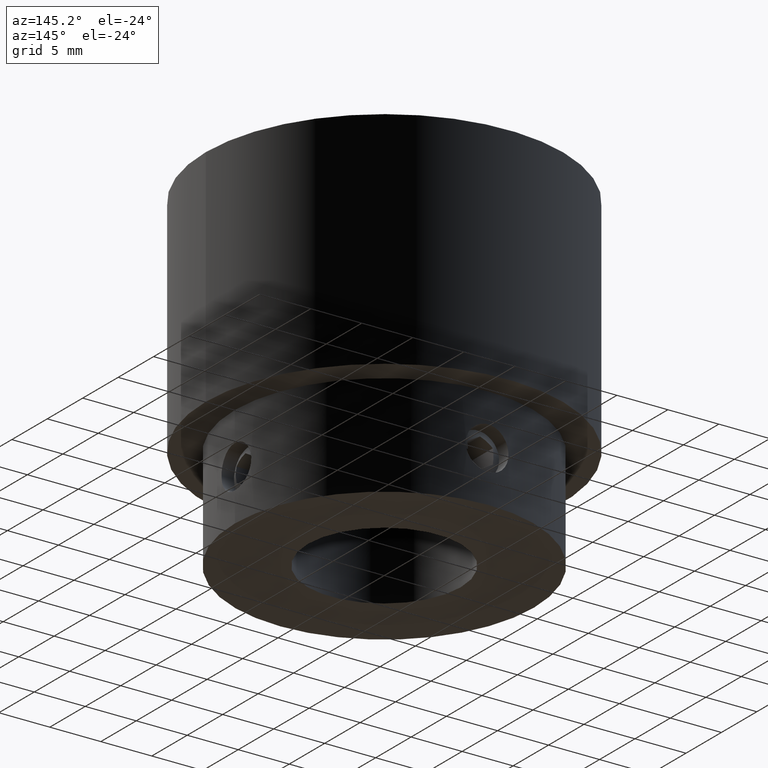
[diagram: clean part render]
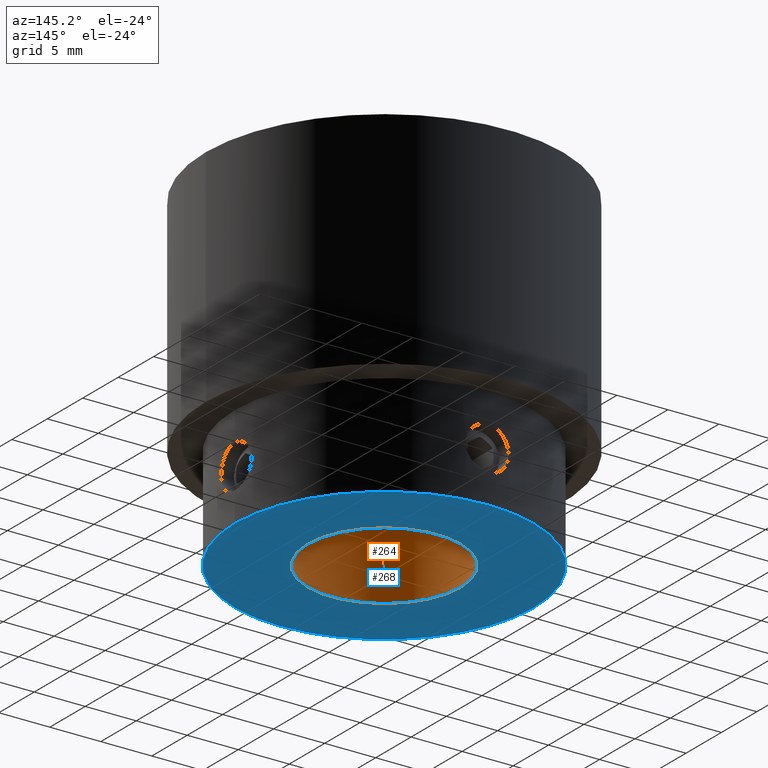
[diagram: same view with the hole feature highlighted: cylindrical wall and planar end face, labeled with their STEP entity ids]
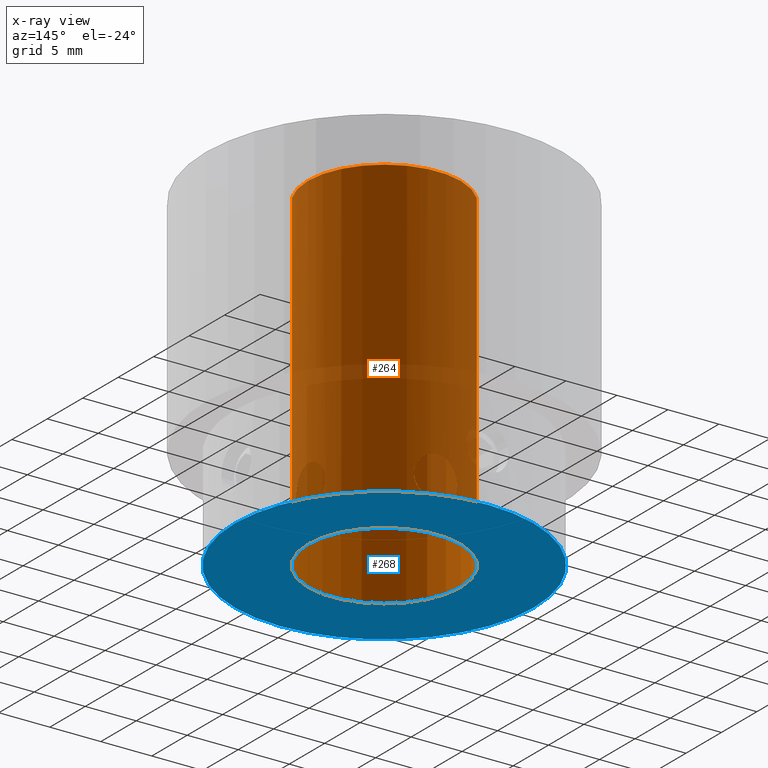
[diagram: x-ray of the same camera — body ghosted, the hole faces saturated]
A machine part, auxiliary view. The highlighted faces form one hole feature of diameter 15 mm: the cylindrical wall (entity #264, orange) and its adjacent planar end face (entity #268, blue) — they share a circular edge in the B-rep.
The next image is the same camera in x-ray (body ghosted, the hole faces saturated) — the bore reads through the body.
Wall:
#264 = ADVANCED_FACE( '', ( #309, #310, #311, #312 ), #313, .F. );
#309 = FACE_BOUND( '', #401, .T. );
#310 = FACE_OUTER_BOUND( '', #402, .T. );
#311 = FACE_OUTER_BOUND( '', #403, .T. );
#312 = FACE_BOUND( '', #404, .T. );
#313 = CYLINDRICAL_SURFACE( '', #405, 7.50000000000000 );
#401 = EDGE_LOOP( '', ( #495 ) );
#402 = EDGE_LOOP( '', ( #496 ) );
#403 = EDGE_LOOP( '', ( #497 ) );
#404 = EDGE_LOOP( '', ( #498 ) );
#405 = AXIS2_PLACEMENT_3D( '', #499, #500, #501 );
#495 = ORIENTED_EDGE( '', *, *, #708, .T. );
#496 = ORIENTED_EDGE( '', *, *, #709, .F. );
#497 = ORIENTED_EDGE( '', *, *, #710, .T. );
#498 = ORIENTED_EDGE( '', *, *, #711, .T. );
#499 = CARTESIAN_POINT( '', ( 0.000000000000000, 0.000000000000000, -32.0000000000000 ) );
#500 = DIRECTION( '', ( -0.000000000000000, 0.000000000000000, -1.00000000000000 ) );
#501 = DIRECTION( '', ( 1.00000000000000, 0.000000000000000, 0.000000000000000 ) );
#708 = EDGE_CURVE( '', #770, #770, #771, .T. );
#709 = EDGE_CURVE( '', #772, #772, #773, .T. );
#710 = EDGE_CURVE( '', #774, #774, #775, .T. );
#711 = EDGE_CURVE( '', #776, #776, #777, .T. );
#770 = VERTEX_POINT( '', #980 );
#771 = B_SPLINE_CURVE_WITH_KNOTS( '', 3, ( #981, #982, #983, #984, #985, #986, #987, #988, #989, #990, #991, #992, #993, #994, #995, #996, #997, #998, #999, #1000, #1001, #1002, #1003, #1004, #1005, #1006, #1007, #1008, #1009, #1010, #1011, #1012, #1013, #1014, #1015, #1016, #1017, #1018, #1019, #1020, #1021, #1022, #1023, #1024, #1025, #1026, #1027, #1028, #1029, #1030, #1031, #1032, #1033, #1034, #1035, #1036, #1037, #1038 ), .UNSPECIFIED., .T., .F., ( 2, 2, 2, 2, 2, 2, 2, 2, 2, 2, 2, 2, 2, 2, 2, 2, 2, 2, 2, 2, 2, 2, 2, 2, 2, 2, 2, 2, 2, 2, 2 ), ( -0.000412362784899686, 0.000000000000000, 0.000412362784899688, 0.000824725569799376, 0.00123708835469906, 0.00164945113959875, 0.00247417670939813, 0.00288653949429782, 0.00329890227919750, 0.00371126506409719, 0.00412362784899688, 0.00494835341879625, 0.00536071620369593, 0.00577307898859561, 0.00618544177349529, 0.00659780455839498, 0.00742253012819434, 0.00783489291309402, 0.00824725569799370, 0.00865961848289339, 0.00907198126779307, 0.00948434405269275, 0.00989670683759243, 0.0103090696224921, 0.0107214324073918, 0.0115461579771912, 0.0119585207620908, 0.0123708835469905, 0.0127832463318902, 0.0131956091167899, 0.0136079719016896 ), .UNSPECIFIED. );
#772 = VERTEX_POINT( '', #1039 );
#773 = CIRCLE( '', #1040, 7.50000000000000 );
#774 = VERTEX_POINT( '', #1041 );
#775 = CIRCLE( '', #1042, 7.50000000000000 );
#776 = VERTEX_POINT( '', #1043 );
#777 = B_SPLINE_CURVE_WITH_KNOTS( '', 3, ( #1044, #1045, #1046, #1047, #1048, #1049, #1050, #1051, #1052, #1053, #1054, #1055, #1056, #1057, #1058, #1059, #1060, #1061, #1062, #1063, #1064, #1065, #1066, #1067, #1068, #1069, #1070, #1071, #1072, #1073, #1074, #1075, #1076, #1077, #1078, #1079, #1080, #1081, #1082, #1083, #1084, #1085, #1086, #1087, #1088, #1089, #1090, #1091, #1092, #1093, #1094, #1095, #1096, #1097, #1098, #1099, #1100, #1101 ), .UNSPECIFIED., .T., .F., ( 2, 2, 2, 2, 2, 2, 2, 2, 2, 2, 2, 2, 2, 2, 2, 2, 2, 2, 2, 2, 2, 2, 2, 2, 2, 2, 2, 2, 2, 2, 2 ), ( -0.000412362784899685, 0.000000000000000, 0.000412362784899688, 0.000824725569799377, 0.00123708835469906, 0.00164945113959875, 0.00247417670939813, 0.00288653949429782, 0.00329890227919751, 0.00371126506409719, 0.00412362784899688, 0.00494835341879625, 0.00536071620369593, 0.00577307898859562, 0.00618544177349530, 0.00659780455839498, 0.00742253012819435, 0.00783489291309403, 0.00824725569799371, 0.00865961848289339, 0.00907198126779307, 0.00948434405269275, 0.00989670683759243, 0.0103090696224921, 0.0107214324073918, 0.0115461579771912, 0.0119585207620909, 0.0123708835469905, 0.0127832463318902, 0.0131956091167899, 0.0136079719016896 ), .UNSPECIFIED. );
#980 = CARTESIAN_POINT( '', ( 7.50000000000000, 0.000000000000000, -29.1000000000000 ) );
#981 = CARTESIAN_POINT( '', ( 7.50000000000000, -0.139484547544357, -29.1000000000000 ) );
#982 = CARTESIAN_POINT( '', ( 7.50000000000000, 0.139484547544357, -29.1000000000000 ) );
#983 = CARTESIAN_POINT( '', ( 7.49611484500254, 0.276503006300371, -29.0862421072495 ) );
#984 = CARTESIAN_POINT( '', ( 7.48132602034894, 0.545850400027695, -29.0324633781064 ) );
#985 = CARTESIAN_POINT( '', ( 7.47023736893898, 0.679611597025491, -28.9917452388751 ) );
#986 = CARTESIAN_POINT( '', ( 7.44276023855697, 0.933615714552528, -28.8860760103808 ) );
#987 = CARTESIAN_POINT( '', ( 7.42646851304949, 1.05397114383422, -28.8215154050814 ) );
#988 = CARTESIAN_POINT( '', ( 7.39056700189677, 1.28172116227570, -28.6691208479791 ) );
#989 = CARTESIAN_POINT( '', ( 7.37091564133840, 1.38897645120188, -28.5809181210956 ) );
#990 = CARTESIAN_POINT( '', ( 7.31254440122232, 1.67788744408973, -28.2918685983388 ) );
#991 = CARTESIAN_POINT( '', ( 7.27311121071654, 1.83402775425397, -28.0587909271637 ) );
#992 = CARTESIAN_POINT( '', ( 7.23097772039752, 1.99145984865897, -27.6802658883728 ) );
#993 = CARTESIAN_POINT( '', ( 7.21949297998244, 2.03217034594363, -27.5472030427510 ) );
#994 = CARTESIAN_POINT( '', ( 7.20400751081142, 2.08640144438240, -27.2758196835030 ) );
#995 = CARTESIAN_POINT( '', ( 7.20002644198376, 2.09990934174891, -27.1391045770045 ) );
#996 = CARTESIAN_POINT( '', ( 7.19997382076614, 2.10008975739417, -26.8636462769264 ) );
#997 = CARTESIAN_POINT( '', ( 7.20403987753898, 2.08628736187369, -26.7236977301935 ) );
#998 = CARTESIAN_POINT( '', ( 7.21943109940247, 2.03238778643891, -26.4537969368924 ) );
#999 = CARTESIAN_POINT( '', ( 7.23068970171432, 1.99251856301782, -26.3225461376081 ) );
#1000 = CARTESIAN_POINT( '', ( 7.27321049523936, 1.83369142380403, -25.9398718941426 ) );
#1001 = CARTESIAN_POINT( '', ( 7.31231402915625, 1.67906962797891, -25.7092334948117 ) );
#1002 = CARTESIAN_POINT( '', ( 7.37112435626836, 1.38792238384447, -25.4180677312056 ) );
#1003 = CARTESIAN_POINT( '', ( 7.39039550972209, 1.28267051253076, -25.3316454545828 ) );
#1004 = CARTESIAN_POINT( '', ( 7.42620363205500, 1.05578835430658, -25.1795710714667 ) );
#1005 = CARTESIAN_POINT( '', ( 7.44285629439773, 0.932797071006050, -25.1135499911861 ) );
#1006 = CARTESIAN_POINT( '', ( 7.47023587970419, 0.679555808093382, -25.0082650991867 ) );
#1007 = CARTESIAN_POINT( '', ( 7.48113837796803, 0.548602552968520, -24.9682238906667 ) );
#1008 = CARTESIAN_POINT( '', ( 7.49608240841265, 0.277749379326125, -24.9138710006654 ) );
#1009 = CARTESIAN_POINT( '', ( 7.49998352038476, 0.138368009679728, -24.9000588557737 ) );
#1010 = CARTESIAN_POINT( '', ( 7.50003279861309, -0.274047565781572, -24.8998828620863 ) );
#1011 = CARTESIAN_POINT( '', ( 7.48401280919416, -0.551698503769402, -24.9553160204370 ) );
#1012 = CARTESIAN_POINT( '', ( 7.44303186091379, -0.931386847251491, -25.1128607643836 ) );
#1013 = CARTESIAN_POINT( '', ( 7.42641830822792, -1.05431436957751, -25.1786908703142 ) );
#1014 = CARTESIAN_POINT( '', ( 7.39053899937899, -1.28187400993181, -25.3310048656644 ) );
#1015 = CARTESIAN_POINT( '', ( 7.37126415359293, -1.38716951183564, -25.4174315381550 ) );
#1016 = CARTESIAN_POINT( '', ( 7.33213747650437, -1.58099161991784, -25.6110335897717 ) );
#1017 = CARTESIAN_POINT( '', ( 7.31236135712365, -1.66896769219573, -25.7181561298168 ) );
#1018 = CARTESIAN_POINT( '', ( 7.27607586995616, -1.82065969071379, -25.9446445358414 ) );
#1019 = CARTESIAN_POINT( '', ( 7.25934106403122, -1.88547289658384, -26.0650103202377 ) );
#1020 = CARTESIAN_POINT( '', ( 7.23083236514922, -1.99201004886840, -26.3209494052564 ) );
#1021 = CARTESIAN_POINT( '', ( 7.21953483997463, -2.03201959191464, -26.4525408935962 ) );
#1022 = CARTESIAN_POINT( '', ( 7.20413234123418, -2.08596839322078, -26.7215202743586 ) );
#1023 = CARTESIAN_POINT( '', ( 7.20001590210664, -2.09994547848698, -26.8607066184506 ) );
#1024 = CARTESIAN_POINT( '', ( 7.19998419228968, -2.10005419786849, -27.1376445595593 ) );
#1025 = CARTESIAN_POINT( '', ( 7.20396481604934, -2.08654539030458, -27.2744229131525 ) );
#1026 = CARTESIAN_POINT( '', ( 7.21931170535136, -2.03281067432632, -27.5446653682853 ) );
#1027 = CARTESIAN_POINT( '', ( 7.23082277649652, -1.99202437859014, -27.6786886939400 ) );
#1028 = CARTESIAN_POINT( '', ( 7.27302429078372, -1.83438116695056, -28.0583778186711 ) );
#1029 = CARTESIAN_POINT( '', ( 7.31245132106243, -1.67827821140545, -28.2913430588923 ) );
#1030 = CARTESIAN_POINT( '', ( 7.37080522995671, -1.38955776471842, -28.5804035500997 ) );
#1031 = CARTESIAN_POINT( '', ( 7.39040237738067, -1.28268886527668, -28.6684008618556 ) );
#1032 = CARTESIAN_POINT( '', ( 7.42639253429134, -1.05452925579165, -28.8212139384555 ) );
#1033 = CARTESIAN_POINT( '', ( 7.44267157627033, -0.934256251269032, -28.8857231290140 ) );
#1034 = CARTESIAN_POINT( '', ( 7.47008279719963, -0.681217981441790, -28.9911626061409 ) );
#1035 = CARTESIAN_POINT( '', ( 7.48123803117921, -0.547182096602870, -29.0321414174842 ) );
#1036 = CARTESIAN_POINT( '', ( 7.49611282848442, -0.276808938866129, -29.0862367552273 ) );
#1037 = CARTESIAN_POINT( '', ( 7.50000000000000, -0.139484547544357, -29.1000000000000 ) );
#1038 = CARTESIAN_POINT( '', ( 7.50000000000000, 0.139484547544357, -29.1000000000000 ) );
#1039 = CARTESIAN_POINT( '', ( 7.50000000000000, 0.000000000000000, -32.0000000000000 ) );
#1040 = AXIS2_PLACEMENT_3D( '', #1276, #1277, #1278 );
#1041 = CARTESIAN_POINT( '', ( 7.50000000000000, 0.000000000000000, 0.000000000000000 ) );
#1042 = AXIS2_PLACEMENT_3D( '', #1279, #1280, #1281 );
#1043 = CARTESIAN_POINT( '', ( 4.59242549680257E-016, 7.50000000000000, -29.1000000000000 ) );
#1044 = CARTESIAN_POINT( '', ( 0.139484547544357, 7.50000000000000, -29.1000000000000 ) );
#1045 = CARTESIAN_POINT( '', ( -0.139484547544357, 7.50000000000000, -29.1000000000000 ) );
#1046 = CARTESIAN_POINT( '', ( -0.276503006300371, 7.49611484500254, -29.0862421072495 ) );
#1047 = CARTESIAN_POINT( '', ( -0.545850400027694, 7.48132602034894, -29.0324633781064 ) );
#1048 = CARTESIAN_POINT( '', ( -0.679611597025490, 7.47023736893899, -28.9917452388751 ) );
#1049 = CARTESIAN_POINT( '', ( -0.933615714552527, 7.44276023855696, -28.8860760103808 ) );
#1050 = CARTESIAN_POINT( '', ( -1.05397114383422, 7.42646851304949, -28.8215154050814 ) );
#1051 = CARTESIAN_POINT( '', ( -1.28172116227570, 7.39056700189677, -28.6691208479791 ) );
#1052 = CARTESIAN_POINT( '', ( -1.38897645120188, 7.37091564133840, -28.5809181210956 ) );
#1053 = CARTESIAN_POINT( '', ( -1.67788744408973, 7.31254440122232, -28.2918685983388 ) );
#1054 = CARTESIAN_POINT( '', ( -1.83402775425397, 7.27311121071654, -28.0587909271636 ) );
#1055 = CARTESIAN_POINT( '', ( -1.99145984865897, 7.23097772039752, -27.6802658883728 ) );
#1056 = CARTESIAN_POINT( '', ( -2.03217034594363, 7.21949297998244, -27.5472030427510 ) );
#1057 = CARTESIAN_POINT( '', ( -2.08640144438240, 7.20400751081142, -27.2758196835030 ) );
#1058 = CARTESIAN_POINT( '', ( -2.09990934174891, 7.20002644198376, -27.1391045770045 ) );
#1059 = CARTESIAN_POINT( '', ( -2.10008975739417, 7.19997382076614, -26.8636462769264 ) );
#1060 = CARTESIAN_POINT( '', ( -2.08628736187369, 7.20403987753897, -26.7236977301935 ) );
#1061 = CARTESIAN_POINT( '', ( -2.03238778643891, 7.21943109940247, -26.4537969368924 ) );
#1062 = CARTESIAN_POINT( '', ( -1.99251856301782, 7.23068970171432, -26.3225461376081 ) );
#1063 = CARTESIAN_POINT( '', ( -1.83369142380403, 7.27321049523936, -25.9398718941426 ) );
#1064 = CARTESIAN_POINT( '', ( -1.67906962797891, 7.31231402915625, -25.7092334948117 ) );
#1065 = CARTESIAN_POINT( '', ( -1.38792238384447, 7.37112435626836, -25.4180677312056 ) );
#1066 = CARTESIAN_POINT( '', ( -1.28267051253076, 7.39039550972209, -25.3316454545828 ) );
#1067 = CARTESIAN_POINT( '', ( -1.05578835430658, 7.42620363205501, -25.1795710714668 ) );
#1068 = CARTESIAN_POINT( '', ( -0.932797071006050, 7.44285629439773, -25.1135499911861 ) );
#1069 = CARTESIAN_POINT( '', ( -0.679555808093382, 7.47023587970419, -25.0082650991867 ) );
#1070 = CARTESIAN_POINT( '', ( -0.548602552968520, 7.48113837796803, -24.9682238906667 ) );
#1071 = CARTESIAN_POINT( '', ( -0.277749379326125, 7.49608240841266, -24.9138710006654 ) );
#1072 = CARTESIAN_POINT( '', ( -0.138368009679727, 7.49998352038476, -24.9000588557736 ) );
#1073 = CARTESIAN_POINT( '', ( 0.274047565781573, 7.50003279861309, -24.8998828620863 ) );
#1074 = CARTESIAN_POINT( '', ( 0.551698503769404, 7.48401280919416, -24.9553160204370 ) );
#1075 = CARTESIAN_POINT( '', ( 0.931386847251491, 7.44303186091379, -25.1128607643836 ) );
#1076 = CARTESIAN_POINT( '', ( 1.05431436957751, 7.42641830822792, -25.1786908703142 ) );
#1077 = CARTESIAN_POINT( '', ( 1.28187400993181, 7.39053899937899, -25.3310048656644 ) );
#1078 = CARTESIAN_POINT( '', ( 1.38716951183564, 7.37126415359293, -25.4174315381550 ) );
#1079 = CARTESIAN_POINT( '', ( 1.58099161991784, 7.33213747650437, -25.6110335897717 ) );
#1080 = CARTESIAN_POINT( '', ( 1.66896769219573, 7.31236135712365, -25.7181561298168 ) );
#1081 = CARTESIAN_POINT( '', ( 1.82065969071379, 7.27607586995616, -25.9446445358414 ) );
#1082 = CARTESIAN_POINT( '', ( 1.88547289658384, 7.25934106403122, -26.0650103202377 ) );
#1083 = CARTESIAN_POINT( '', ( 1.99201004886840, 7.23083236514922, -26.3209494052564 ) );
#1084 = CARTESIAN_POINT( '', ( 2.03201959191465, 7.21953483997463, -26.4525408935962 ) );
#1085 = CARTESIAN_POINT( '', ( 2.08596839322078, 7.20413234123419, -26.7215202743586 ) );
#1086 = CARTESIAN_POINT( '', ( 2.09994547848698, 7.20001590210664, -26.8607066184507 ) );
#1087 = CARTESIAN_POINT( '', ( 2.10005419786849, 7.19998419228968, -27.1376445595592 ) );
#1088 = CARTESIAN_POINT( '', ( 2.08654539030458, 7.20396481604935, -27.2744229131525 ) );
#1089 = CARTESIAN_POINT( '', ( 2.03281067432632, 7.21931170535136, -27.5446653682853 ) );
#1090 = CARTESIAN_POINT( '', ( 1.99202437859014, 7.23082277649652, -27.6786886939400 ) );
#1091 = CARTESIAN_POINT( '', ( 1.83438116695056, 7.27302429078372, -28.0583778186711 ) );
#1092 = CARTESIAN_POINT( '', ( 1.67827821140545, 7.31245132106243, -28.2913430588923 ) );
#1093 = CARTESIAN_POINT( '', ( 1.38955776471842, 7.37080522995671, -28.5804035500997 ) );
#1094 = CARTESIAN_POINT( '', ( 1.28268886527668, 7.39040237738067, -28.6684008618555 ) );
#1095 = CARTESIAN_POINT( '', ( 1.05452925579165, 7.42639253429134, -28.8212139384555 ) );
#1096 = CARTESIAN_POINT( '', ( 0.934256251269033, 7.44267157627033, -28.8857231290140 ) );
#1097 = CARTESIAN_POINT( '', ( 0.681217981441790, 7.47008279719963, -28.9911626061409 ) );
#1098 = CARTESIAN_POINT( '', ( 0.547182096602871, 7.48123803117921, -29.0321414174842 ) );
#1099 = CARTESIAN_POINT( '', ( 0.276808938866129, 7.49611282848442, -29.0862367552273 ) );
#1100 = CARTESIAN_POINT( '', ( 0.139484547544357, 7.50000000000000, -29.1000000000000 ) );
#1101 = CARTESIAN_POINT( '', ( -0.139484547544357, 7.50000000000000, -29.1000000000000 ) );
#1276 = CARTESIAN_POINT( '', ( 0.000000000000000, 0.000000000000000, -32.0000000000000 ) );
#1277 = DIRECTION( '', ( 0.000000000000000, 0.000000000000000, 1.00000000000000 ) );
#1278 = DIRECTION( '', ( 1.00000000000000, 0.000000000000000, 0.000000000000000 ) );
#1279 = CARTESIAN_POINT( '', ( 0.000000000000000, 0.000000000000000, 0.000000000000000 ) );
#1280 = DIRECTION( '', ( 0.000000000000000, 0.000000000000000, 1.00000000000000 ) );
#1281 = DIRECTION( '', ( 1.00000000000000, 0.000000000000000, 0.000000000000000 ) );
End face:
#268 = ADVANCED_FACE( '', ( #323, #324 ), #325, .F. );
#323 = FACE_OUTER_BOUND( '', #415, .T. );
#324 = FACE_BOUND( '', #416, .T. );
#325 = PLANE( '', #417 );
#415 = EDGE_LOOP( '', ( #517 ) );
#416 = EDGE_LOOP( '', ( #518 ) );
#417 = AXIS2_PLACEMENT_3D( '', #519, #520, #521 );
#517 = ORIENTED_EDGE( '', *, *, #705, .F. );
#518 = ORIENTED_EDGE( '', *, *, #709, .T. );
#519 = CARTESIAN_POINT( '', ( 0.000000000000000, 0.000000000000000, -32.0000000000000 ) );
#520 = DIRECTION( '', ( 0.000000000000000, 0.000000000000000, 1.00000000000000 ) );
#521 = DIRECTION( '', ( 1.00000000000000, 0.000000000000000, 0.000000000000000 ) );
#705 = EDGE_CURVE( '', #764, #764, #765, .T. );
#709 = EDGE_CURVE( '', #772, #772, #773, .T. );
#764 = VERTEX_POINT( '', #919 );
#765 = CIRCLE( '', #920, 14.6500000000000 );
#772 = VERTEX_POINT( '', #1039 );
#773 = CIRCLE( '', #1040, 7.50000000000000 );
#919 = CARTESIAN_POINT( '', ( 14.6500000000000, 0.000000000000000, -32.0000000000000 ) );
#920 = AXIS2_PLACEMENT_3D( '', #1270, #1271, #1272 );
#1039 = CARTESIAN_POINT( '', ( 7.50000000000000, 0.000000000000000, -32.0000000000000 ) );
#1040 = AXIS2_PLACEMENT_3D( '', #1276, #1277, #1278 );
#1270 = CARTESIAN_POINT( '', ( 0.000000000000000, 0.000000000000000, -32.0000000000000 ) );
#1271 = DIRECTION( '', ( 0.000000000000000, 0.000000000000000, 1.00000000000000 ) );
#1272 = DIRECTION( '', ( 1.00000000000000, 0.000000000000000, -0.000000000000000 ) );
#1276 = CARTESIAN_POINT( '', ( 0.000000000000000, 0.000000000000000, -32.0000000000000 ) );
#1277 = DIRECTION( '', ( 0.000000000000000, 0.000000000000000, 1.00000000000000 ) );
#1278 = DIRECTION( '', ( 1.00000000000000, 0.000000000000000, 0.000000000000000 ) );